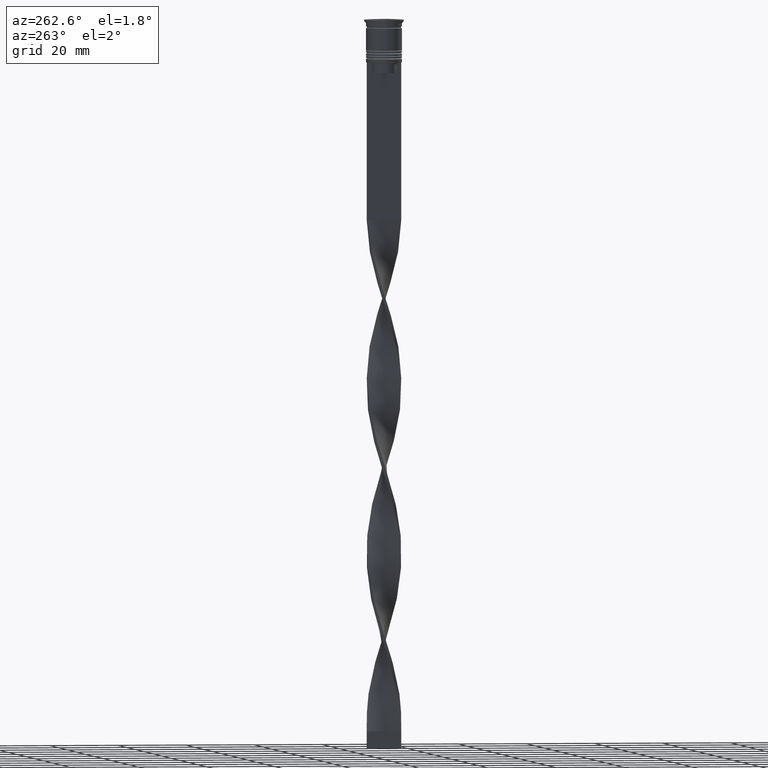
[diagram: clean part render]
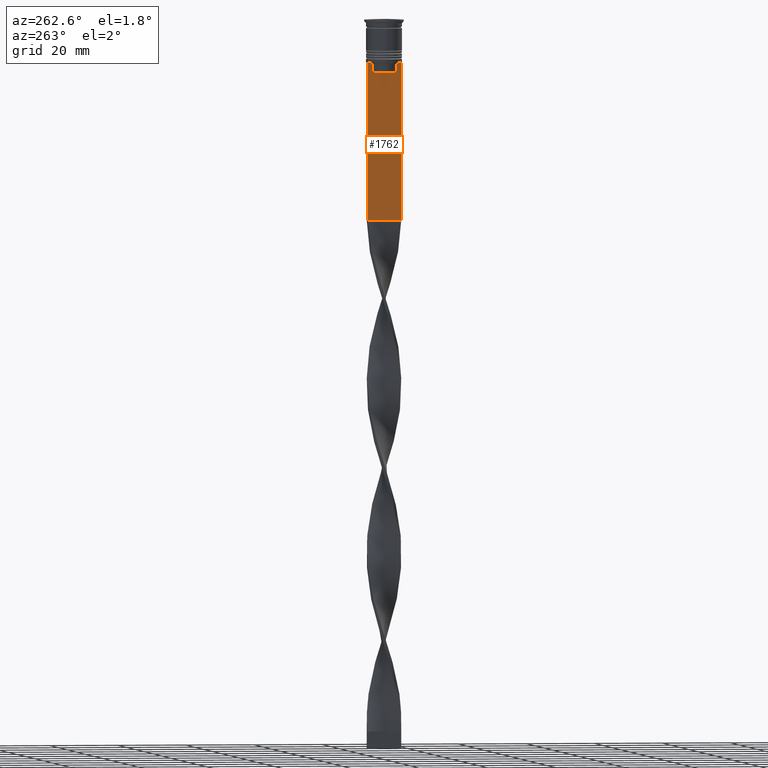
[diagram: same view with one face highlighted and labeled with its STEP entity id]
A machine part, auxiliary view. The second image highlights one B-rep face of the part: STEP entity #1762.
In plain terms, the highlighted planar face has unit normal (-1, 0, 0).
Its self-contained STEP definition (entity closure, byte-faithful):
#61 = EDGE_CURVE ( 'NONE', #1455, #3048, #2482, .T. ) ;
#80 = DIRECTION ( 'NONE',  ( 0.000000000000000000, 0.000000000000000000, 1.000000000000000000 ) ) ;
#99 = CARTESIAN_POINT ( 'NONE',  ( -0.5000000000000000000, -4.999999999999999112, -12.50000000000000000 ) ) ;
#314 = LINE ( 'NONE', #590, #443 ) ;
#418 = ORIENTED_EDGE ( 'NONE', *, *, #2512, .F. ) ;
#443 = VECTOR ( 'NONE', #3255, 1000.000000000000000 ) ;
#465 = VERTEX_POINT ( 'NONE', #2440 ) ;
#569 = VERTEX_POINT ( 'NONE', #2728 ) ;
#590 = CARTESIAN_POINT ( 'NONE',  ( -0.5000000000000000000, -4.999999999999999112, -2.450124378879110054 ) ) ;
#629 = DIRECTION ( 'NONE',  ( 0.000000000000000000, -1.000000000000000000, 0.000000000000000000 ) ) ;
#642 = ORIENTED_EDGE ( 'NONE', *, *, #1060, .F. ) ;
#652 = EDGE_LOOP ( 'NONE', ( #418, #3628, #948, #2193, #1753, #917, #1462, #1143, #642, #2089 ) ) ;
#692 = VERTEX_POINT ( 'NONE', #983 ) ;
#765 = EDGE_CURVE ( 'NONE', #692, #3048, #1641, .T. ) ;
#820 = B_SPLINE_CURVE_WITH_KNOTS ( 'NONE', 3,
 ( #1619, #3358, #2159, #3373 ),
 .UNSPECIFIED., .F., .F.,
 ( 4, 4 ),
 ( 0.007067514914986629433, 0.007777582239375527111 ),
 .UNSPECIFIED. ) ;
#872 = CARTESIAN_POINT ( 'NONE',  ( -0.5000000000000000000, -4.119769411022908834, -12.50000000000000000 ) ) ;
#909 = FACE_OUTER_BOUND ( 'NONE', #652, .T. ) ;
#917 = ORIENTED_EDGE ( 'NONE', *, *, #1321, .F. ) ;
#936 = VECTOR ( 'NONE', #1578, 1000.000000000000000 ) ;
#948 = ORIENTED_EDGE ( 'NONE', *, *, #61, .T. ) ;
#964 = DIRECTION ( 'NONE',  ( 0.000000000000000000, -1.000000000000000000, 0.000000000000000000 ) ) ;
#983 = CARTESIAN_POINT ( 'NONE',  ( -0.5000000000000000000, -4.999999999999999112, -58.50000000000000000 ) ) ;
#995 = EDGE_CURVE ( 'NONE', #465, #692, #314, .T. ) ;
#1060 = EDGE_CURVE ( 'NONE', #2595, #1503, #1831, .T. ) ;
#1070 = VECTOR ( 'NONE', #1871, 1000.000000000000000 ) ;
#1106 = EDGE_CURVE ( 'NONE', #2157, #2595, #2042, .T. ) ;
#1122 = VECTOR ( 'NONE', #1599, 1000.000000000000000 ) ;
#1143 = ORIENTED_EDGE ( 'NONE', *, *, #3041, .F. ) ;
#1230 = PLANE ( 'NONE',  #1795 ) ;
#1300 = CARTESIAN_POINT ( 'NONE',  ( -0.5000000000000000000, -4.119769411022908834, -12.50000000000000000 ) ) ;
#1319 = VERTEX_POINT ( 'NONE', #1486 ) ;
#1321 = EDGE_CURVE ( 'NONE', #2881, #465, #2392, .T. ) ;
#1379 = DIRECTION ( 'NONE',  ( 0.000000000000000000, 1.000000000000000000, 0.000000000000000000 ) ) ;
#1455 = VERTEX_POINT ( 'NONE', #2593 ) ;
#1462 = ORIENTED_EDGE ( 'NONE', *, *, #2448, .F. ) ;
#1486 = CARTESIAN_POINT ( 'NONE',  ( -0.5000000000000000000, 4.119769411022908834, -12.50000000000000000 ) ) ;
#1503 = VERTEX_POINT ( 'NONE', #1927 ) ;
#1567 = CARTESIAN_POINT ( 'NONE',  ( -0.5000000000000000000, 3.615591237958188486, -15.50000000000000000 ) ) ;
#1578 = DIRECTION ( 'NONE',  ( 0.000000000000000000, 0.000000000000000000, -1.000000000000000000 ) ) ;
#1599 = DIRECTION ( 'NONE',  ( 0.000000000000000000, 0.000000000000000000, -1.000000000000000000 ) ) ;
#1619 = CARTESIAN_POINT ( 'NONE',  ( -0.5000000000000000000, 4.119769411022908834, -12.50000000000000000 ) ) ;
#1641 = LINE ( 'NONE', #2859, #3696 ) ;
#1753 = ORIENTED_EDGE ( 'NONE', *, *, #995, .F. ) ;
#1762 = ADVANCED_FACE ( 'NONE', ( #909 ), #1230, .T. ) ;
#1795 = AXIS2_PLACEMENT_3D ( 'NONE', #2068, #2396, #80 ) ;
#1831 = LINE ( 'NONE', #2329, #3271 ) ;
#1852 = CARTESIAN_POINT ( 'NONE',  ( -0.5000000000000000000, -3.615591237958188042, -13.00000000000000178 ) ) ;
#1871 = DIRECTION ( 'NONE',  ( -0.000000000000000000, -0.000000000000000000, 1.000000000000000000 ) ) ;
#1876 = CARTESIAN_POINT ( 'NONE',  ( -0.5000000000000000000, -3.783746406711538945, -12.83343003979123687 ) ) ;
#1927 = CARTESIAN_POINT ( 'NONE',  ( -0.5000000000000000000, -3.615591237958188486, -15.50000000000000000 ) ) ;
#2029 = VECTOR ( 'NONE', #3287, 1000.000000000000000 ) ;
#2042 = LINE ( 'NONE', #2644, #1122 ) ;
#2068 = CARTESIAN_POINT ( 'NONE',  ( -0.5000000000000000000, -4.999999999999999112, -2.450124378879110054 ) ) ;
#2089 = ORIENTED_EDGE ( 'NONE', *, *, #1106, .F. ) ;
#2157 = VERTEX_POINT ( 'NONE', #3805 ) ;
#2159 = CARTESIAN_POINT ( 'NONE',  ( -0.5000000000000000000, 3.783746449387932920, -12.83342999751715752 ) ) ;
#2170 = VECTOR ( 'NONE', #629, 1000.000000000000000 ) ;
#2193 = ORIENTED_EDGE ( 'NONE', *, *, #765, .F. ) ;
#2329 = CARTESIAN_POINT ( 'NONE',  ( -0.5000000000000000000, 3.650000000000003464, -15.50000000000000000 ) ) ;
#2392 = LINE ( 'NONE', #99, #2029 ) ;
#2396 = DIRECTION ( 'NONE',  ( -1.000000000000000000, 0.000000000000000000, 0.000000000000000000 ) ) ;
#2440 = CARTESIAN_POINT ( 'NONE',  ( -0.5000000000000000000, -4.999999999999999112, -12.50000000000000000 ) ) ;
#2448 = EDGE_CURVE ( 'NONE', #569, #2881, #3111, .T. ) ;
#2482 = LINE ( 'NONE', #2805, #936 ) ;
#2484 = CARTESIAN_POINT ( 'NONE',  ( -0.5000000000000000000, -3.615591237958188042, 0.000000000000000000 ) ) ;
#2500 = LINE ( 'NONE', #2484, #1070 ) ;
#2512 = EDGE_CURVE ( 'NONE', #1319, #2157, #820, .T. ) ;
#2593 = CARTESIAN_POINT ( 'NONE',  ( -0.5000000000000000000, 5.000000000000000888, -12.50000000000000000 ) ) ;
#2595 = VERTEX_POINT ( 'NONE', #1567 ) ;
#2644 = CARTESIAN_POINT ( 'NONE',  ( -0.5000000000000000000, 3.615591237958188042, 0.000000000000000000 ) ) ;
#2718 = CARTESIAN_POINT ( 'NONE',  ( -0.5000000000000000000, -4.999999999999999112, -12.50000000000000000 ) ) ;
#2728 = CARTESIAN_POINT ( 'NONE',  ( -0.5000000000000000000, -3.615591237958188042, -13.00000000000000178 ) ) ;
#2805 = CARTESIAN_POINT ( 'NONE',  ( -0.5000000000000000000, 5.000000000000000888, -2.450124378879110054 ) ) ;
#2859 = CARTESIAN_POINT ( 'NONE',  ( -0.5000000000000000000, -4.999999999999999112, -58.50000000000000000 ) ) ;
#2881 = VERTEX_POINT ( 'NONE', #872 ) ;
#2886 = EDGE_CURVE ( 'NONE', #1455, #1319, #3562, .T. ) ;
#3041 = EDGE_CURVE ( 'NONE', #1503, #569, #2500, .T. ) ;
#3048 = VERTEX_POINT ( 'NONE', #3643 ) ;
#3111 = B_SPLINE_CURVE_WITH_KNOTS ( 'NONE', 3,
 ( #1852, #1876, #3649, #1300 ),
 .UNSPECIFIED., .F., .F.,
 ( 4, 4 ),
 ( 0.01745179617248910492, 0.01816207215777258452 ),
 .UNSPECIFIED. ) ;
#3255 = DIRECTION ( 'NONE',  ( 0.000000000000000000, 0.000000000000000000, -1.000000000000000000 ) ) ;
#3271 = VECTOR ( 'NONE', #964, 1000.000000000000000 ) ;
#3287 = DIRECTION ( 'NONE',  ( 0.000000000000000000, -1.000000000000000000, 0.000000000000000000 ) ) ;
#3358 = CARTESIAN_POINT ( 'NONE',  ( -0.5000000000000000000, 3.951794205566887985, -12.66675159355373737 ) ) ;
#3373 = CARTESIAN_POINT ( 'NONE',  ( -0.5000000000000000000, 3.615591237958188042, -13.00000000000000178 ) ) ;
#3562 = LINE ( 'NONE', #2718, #2170 ) ;
#3628 = ORIENTED_EDGE ( 'NONE', *, *, #2886, .F. ) ;
#3643 = CARTESIAN_POINT ( 'NONE',  ( -0.5000000000000000000, 5.000000000000000888, -58.50000000000000000 ) ) ;
#3649 = CARTESIAN_POINT ( 'NONE',  ( -0.5000000000000000000, -3.951794168112525263, -12.66675163073526100 ) ) ;
#3696 = VECTOR ( 'NONE', #1379, 1000.000000000000000 ) ;
#3805 = CARTESIAN_POINT ( 'NONE',  ( -0.5000000000000000000, 3.615591237958188042, -13.00000000000000178 ) ) ;